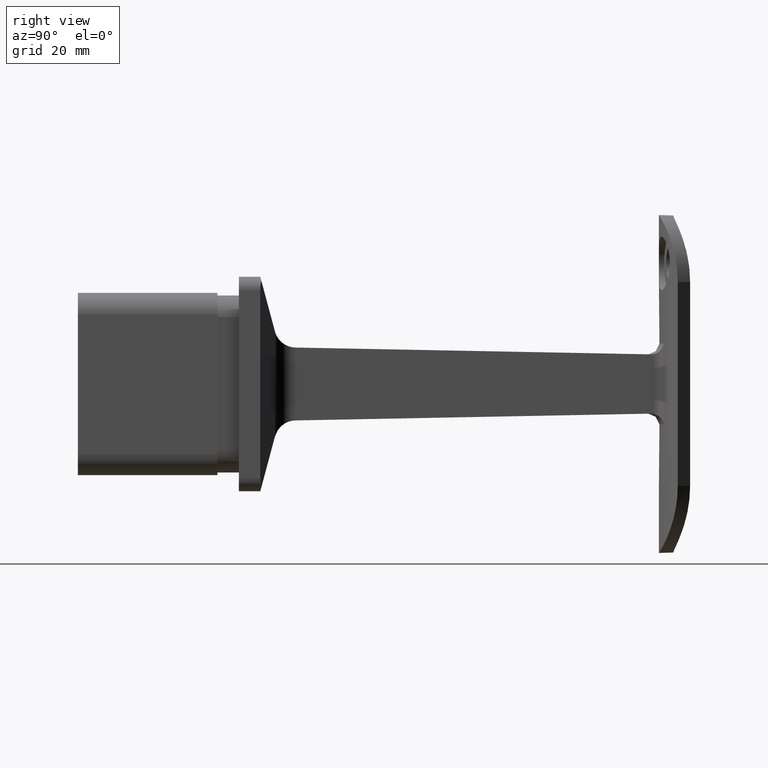
[diagram: clean part render]
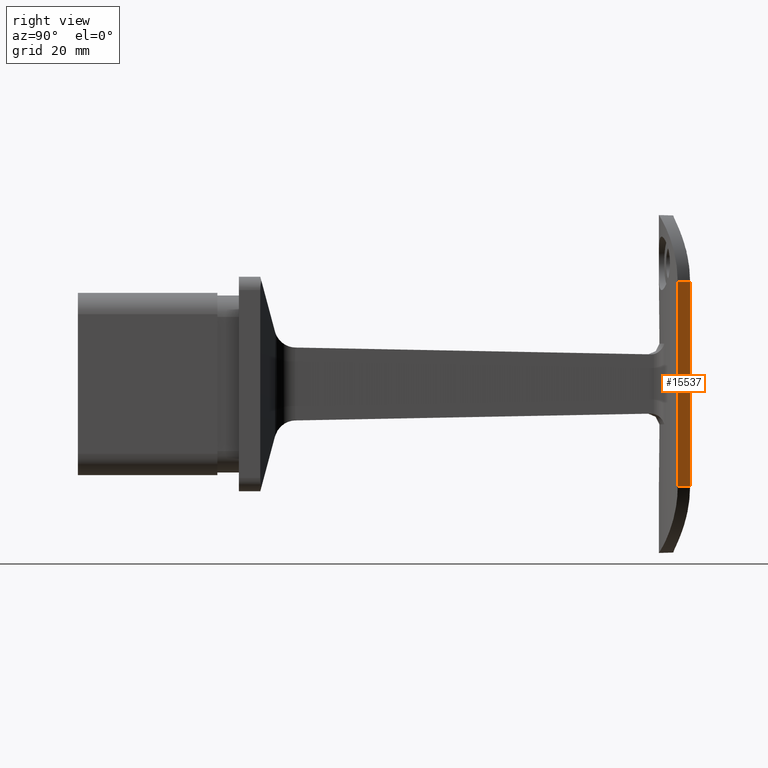
[diagram: same view with one face highlighted and labeled with its STEP entity id]
A machine part, right view. The second image highlights one B-rep face of the part: STEP entity #15537.
In plain terms, the highlighted planar face has unit normal (-0.8523, -0.523, 0).
Its self-contained STEP definition (entity closure, byte-faithful):
#3518 = LINE ( 'NONE', #4955, #10450 ) ;
#3685 = EDGE_CURVE ( 'NONE', #6209, #7290, #3518, .T. ) ;
#3757 = CARTESIAN_POINT ( 'NONE',  ( 12.49999999999999645, 81.82943299758201761, 31.50000000000000000 ) ) ;
#4923 = DIRECTION ( 'NONE',  ( -0.000000000000000000, -0.000000000000000000, -1.000000000000000000 ) ) ;
#4955 = CARTESIAN_POINT ( 'NONE',  ( 11.08786610878660639, 84.13071044136982835, 31.50000000000000000 ) ) ;
#5330 = CARTESIAN_POINT ( 'NONE',  ( 12.49999999999999645, 81.82943299758201761, 19.00000000000000000 ) ) ;
#5458 = CARTESIAN_POINT ( 'NONE',  ( 12.49999999999999645, 81.82943299758201761, 19.00000000000000000 ) ) ;
#5626 = CARTESIAN_POINT ( 'NONE',  ( 12.49999999999999645, 81.82943299758201761, -19.00000000000000355 ) ) ;
#6209 = VERTEX_POINT ( 'NONE', #14303 ) ;
#6468 = ORIENTED_EDGE ( 'NONE', *, *, #7211, .T. ) ;
#6519 = CARTESIAN_POINT ( 'NONE',  ( 11.08786610878660639, 84.13071044136982835, -19.00000000000000355 ) ) ;
#7014 = VERTEX_POINT ( 'NONE', #5626 ) ;
#7081 = ORIENTED_EDGE ( 'NONE', *, *, #11578, .T. ) ;
#7142 = DIRECTION ( 'NONE',  ( -0.5230125523012559841, 0.8523249791806678521, 0.000000000000000000 ) ) ;
#7211 = EDGE_CURVE ( 'NONE', #7014, #7290, #7296, .T. ) ;
#7290 = VERTEX_POINT ( 'NONE', #6519 ) ;
#7296 = LINE ( 'NONE', #13669, #15225 ) ;
#7436 = VERTEX_POINT ( 'NONE', #5330 ) ;
#8285 = VECTOR ( 'NONE', #9268, 999.9999999999998863 ) ;
#9268 = DIRECTION ( 'NONE',  ( 0.5230125523012559841, -0.8523249791806678521, -0.000000000000000000 ) ) ;
#9643 = LINE ( 'NONE', #5458, #8285 ) ;
#10249 = FACE_OUTER_BOUND ( 'NONE', #16191, .T. ) ;
#10450 = VECTOR ( 'NONE', #13847, 1000.000000000000000 ) ;
#11149 = PLANE ( 'NONE',  #14259 ) ;
#11578 = EDGE_CURVE ( 'NONE', #7436, #7014, #15949, .T. ) ;
#13198 = ORIENTED_EDGE ( 'NONE', *, *, #3685, .F. ) ;
#13659 = CARTESIAN_POINT ( 'NONE',  ( 11.08786610878660639, 84.13071044136982835, 31.50000000000000000 ) ) ;
#13669 = CARTESIAN_POINT ( 'NONE',  ( 11.08786610878660639, 84.13071044136982835, -19.00000000000000355 ) ) ;
#13847 = DIRECTION ( 'NONE',  ( -0.000000000000000000, -0.000000000000000000, -1.000000000000000000 ) ) ;
#14259 = AXIS2_PLACEMENT_3D ( 'NONE', #13659, #16164, #14976 ) ;
#14303 = CARTESIAN_POINT ( 'NONE',  ( 11.08786610878660639, 84.13071044136982835, 19.00000000000000000 ) ) ;
#14976 = DIRECTION ( 'NONE',  ( 0.5230125523012559841, -0.8523249791806678521, 0.000000000000000000 ) ) ;
#15225 = VECTOR ( 'NONE', #7142, 999.9999999999998863 ) ;
#15537 = ADVANCED_FACE ( 'NONE', ( #10249 ), #11149, .F. ) ;
#15721 = VECTOR ( 'NONE', #4923, 1000.000000000000000 ) ;
#15949 = LINE ( 'NONE', #3757, #15721 ) ;
#16164 = DIRECTION ( 'NONE',  ( -0.8523249791806678521, -0.5230125523012559841, 0.000000000000000000 ) ) ;
#16169 = ORIENTED_EDGE ( 'NONE', *, *, #16378, .T. ) ;
#16191 = EDGE_LOOP ( 'NONE', ( #7081, #6468, #13198, #16169 ) ) ;
#16378 = EDGE_CURVE ( 'NONE', #6209, #7436, #9643, .T. ) ;